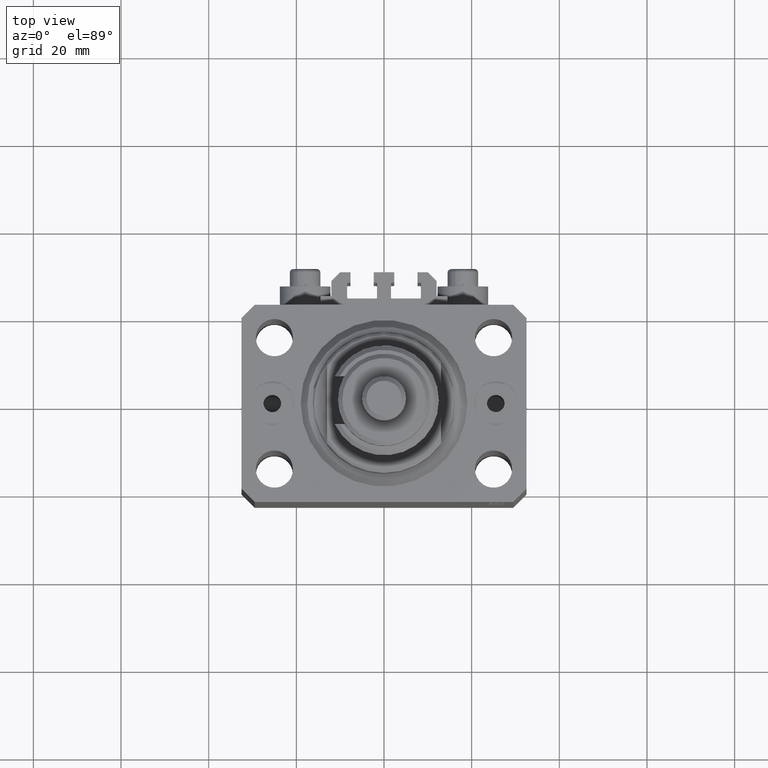
[diagram: clean part render]
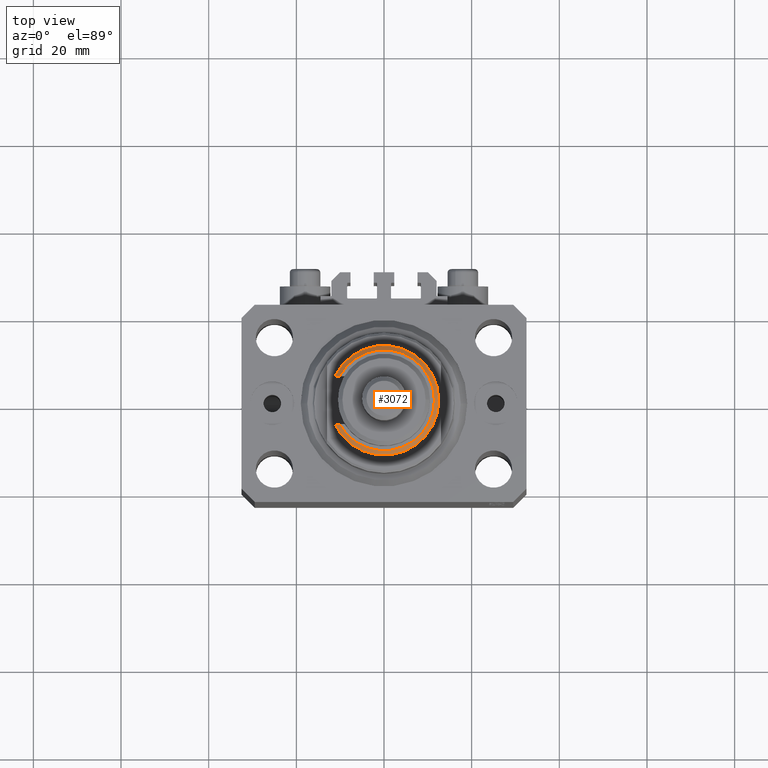
[diagram: same view with one face highlighted and labeled with its STEP entity id]
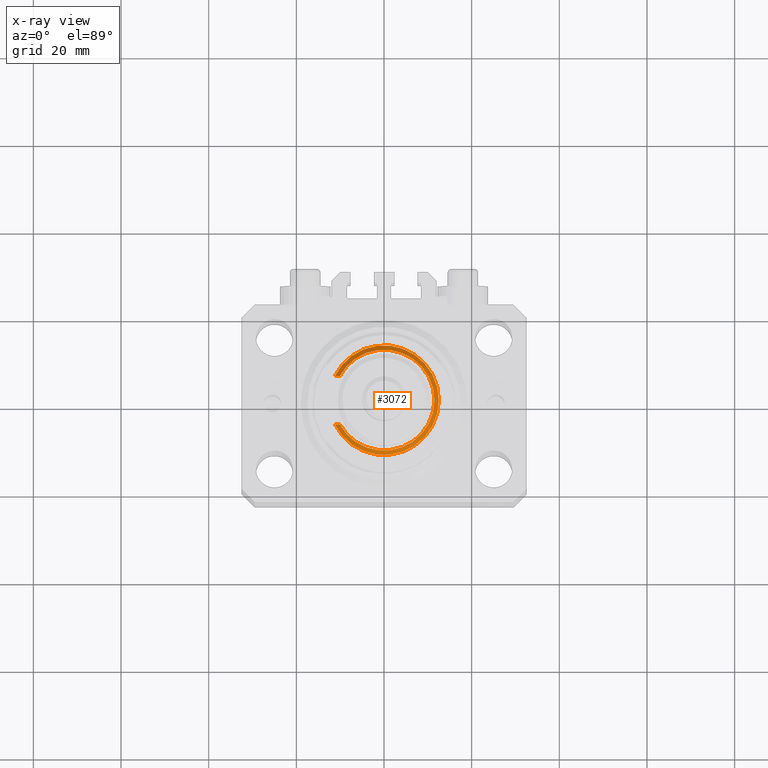
[diagram: x-ray of the same camera — body ghosted, the highlighted face saturated]
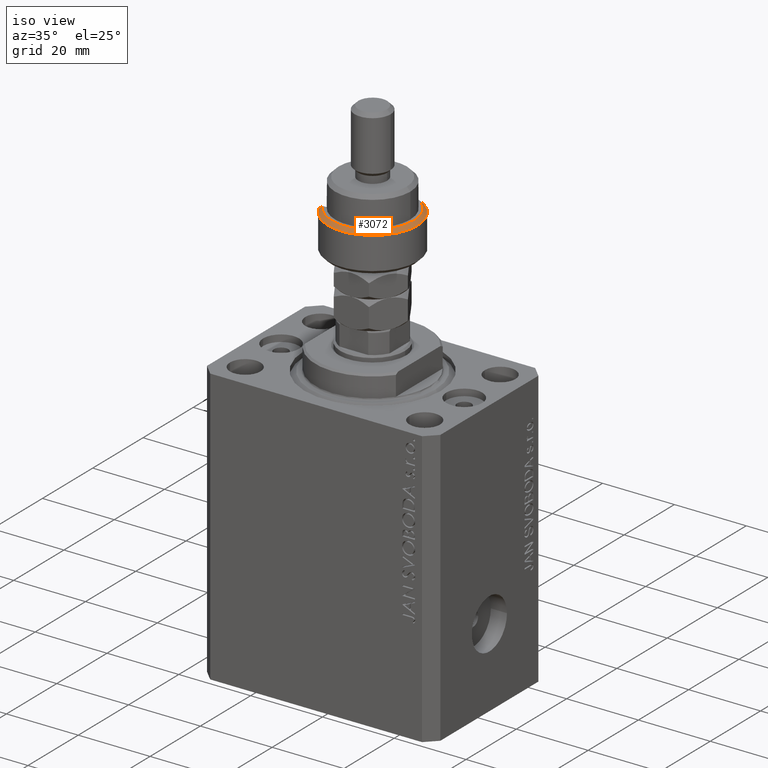
[diagram: same view with one face highlighted and labeled with its STEP entity id]
A machine part, top view. The second image highlights one B-rep face of the part: STEP entity #3072.
The next image is the same camera in x-ray: the body ghosted, the highlighted face saturated — about 0% of this face is hidden behind the body in this view.
A second angle (iso view) of the same face is appended — the face is thin or edge-on in the first view.
In plain terms, the highlighted conical surface has half-angle 45 deg.
Its self-contained STEP definition (entity closure, byte-faithful):
#2463 = EDGE_CURVE ( 'NONE', #49010, #26597, #45693, .T. ) ;
#3072 = ADVANCED_FACE ( 'NONE', ( #17083 ), #16475, .T. ) ;
#3499 = VERTEX_POINT ( 'NONE', #45318 ) ;
#4122 = CARTESIAN_POINT ( 'NONE',  ( -10.09950493836208096, -5.500000000000000000, 11.00000000000000000 ) ) ;
#5436 = DIRECTION ( 'NONE',  ( 0.000000000000000000, 0.000000000000000000, -1.000000000000000000 ) ) ;
#7202 = CARTESIAN_POINT ( 'NONE',  ( -11.22497216032182088, -5.500000000000007105, 10.00000000000000000 ) ) ;
#11596 = AXIS2_PLACEMENT_3D ( 'NONE', #25176, #5436, #20880 ) ;
#12475 = CARTESIAN_POINT ( 'NONE',  ( -11.22497216032182088, -5.500000000000007105, 10.00000000000000000 ) ) ;
#12585 = ORIENTED_EDGE ( 'NONE', *, *, #43008, .F. ) ;
#13802 = B_SPLINE_CURVE_WITH_KNOTS ( 'NONE', 3,
 ( #49539, #22488, #33410, #45749 ),
 .UNSPECIFIED., .F., .F.,
 ( 4, 4 ),
 ( 0.000000000000000000, 0.001505548560394443522 ),
 .UNSPECIFIED. ) ;
#15315 = EDGE_CURVE ( 'NONE', #26597, #38024, #38695, .T. ) ;
#16475 = CONICAL_SURFACE ( 'NONE', #11596, 11.50000000000000355, 0.7853981633974473908 ) ;
#17083 = FACE_OUTER_BOUND ( 'NONE', #34938, .T. ) ;
#20880 = DIRECTION ( 'NONE',  ( -1.000000000000000000, 0.000000000000000000, 0.000000000000000000 ) ) ;
#22142 = CARTESIAN_POINT ( 'NONE',  ( -10.09950493836208096, -5.500000000000000000, 11.00000000000000000 ) ) ;
#22488 = CARTESIAN_POINT ( 'NONE',  ( -10.47658324993067325, 5.500000000000000000, 10.66884310697076188 ) ) ;
#23076 = EDGE_CURVE ( 'NONE', #38024, #3499, #13802, .T. ) ;
#25176 = CARTESIAN_POINT ( 'NONE',  ( 0.000000000000000000, 0.000000000000000000, 11.00000000000000000 ) ) ;
#25831 = CIRCLE ( 'NONE', #36353, 12.50000000000000000 ) ;
#26597 = VERTEX_POINT ( 'NONE', #22142 ) ;
#27012 = DIRECTION ( 'NONE',  ( 1.000000000000000000, 0.000000000000000000, 0.000000000000000000 ) ) ;
#28176 = CARTESIAN_POINT ( 'NONE',  ( -10.85157883450861860, -5.500000000000007105, 10.33530637496825477 ) ) ;
#28726 = ORIENTED_EDGE ( 'NONE', *, *, #2463, .F. ) ;
#30821 = DIRECTION ( 'NONE',  ( 0.000000000000000000, 0.000000000000000000, 1.000000000000000000 ) ) ;
#33410 = CARTESIAN_POINT ( 'NONE',  ( -10.85157883450862037, 5.500000000000000000, 10.33530637496825655 ) ) ;
#34938 = EDGE_LOOP ( 'NONE', ( #28726, #12585, #41077, #46694 ) ) ;
#36353 = AXIS2_PLACEMENT_3D ( 'NONE', #43363, #42870, #38829 ) ;
#38024 = VERTEX_POINT ( 'NONE', #44968 ) ;
#38695 = CIRCLE ( 'NONE', #46770, 11.50000000000000355 ) ;
#38829 = DIRECTION ( 'NONE',  ( 1.000000000000000000, 0.000000000000000000, 0.000000000000000000 ) ) ;
#41077 = ORIENTED_EDGE ( 'NONE', *, *, #23076, .F. ) ;
#42834 = CARTESIAN_POINT ( 'NONE',  ( -10.47658324993067325, -5.500000000000000000, 10.66884310697076366 ) ) ;
#42870 = DIRECTION ( 'NONE',  ( 0.000000000000000000, 0.000000000000000000, -1.000000000000000000 ) ) ;
#43008 = EDGE_CURVE ( 'NONE', #3499, #49010, #25831, .T. ) ;
#43363 = CARTESIAN_POINT ( 'NONE',  ( 0.000000000000000000, 0.000000000000000000, 10.00000000000000000 ) ) ;
#44968 = CARTESIAN_POINT ( 'NONE',  ( -10.09950493836208096, 5.500000000000000000, 11.00000000000000000 ) ) ;
#45318 = CARTESIAN_POINT ( 'NONE',  ( -11.22497216032182443, 5.500000000000000000, 10.00000000000000000 ) ) ;
#45693 = B_SPLINE_CURVE_WITH_KNOTS ( 'NONE', 3,
 ( #12475, #28176, #42834, #4122 ),
 .UNSPECIFIED., .F., .F.,
 ( 4, 4 ),
 ( 0.000000000000000000, 0.001505548560394440920 ),
 .UNSPECIFIED. ) ;
#45749 = CARTESIAN_POINT ( 'NONE',  ( -11.22497216032182443, 5.500000000000000000, 10.00000000000000000 ) ) ;
#46694 = ORIENTED_EDGE ( 'NONE', *, *, #15315, .F. ) ;
#46770 = AXIS2_PLACEMENT_3D ( 'NONE', #50002, #30821, #27012 ) ;
#49010 = VERTEX_POINT ( 'NONE', #7202 ) ;
#49539 = CARTESIAN_POINT ( 'NONE',  ( -10.09950493836208096, 5.500000000000000000, 11.00000000000000000 ) ) ;
#50002 = CARTESIAN_POINT ( 'NONE',  ( 0.000000000000000000, 0.000000000000000000, 11.00000000000000000 ) ) ;